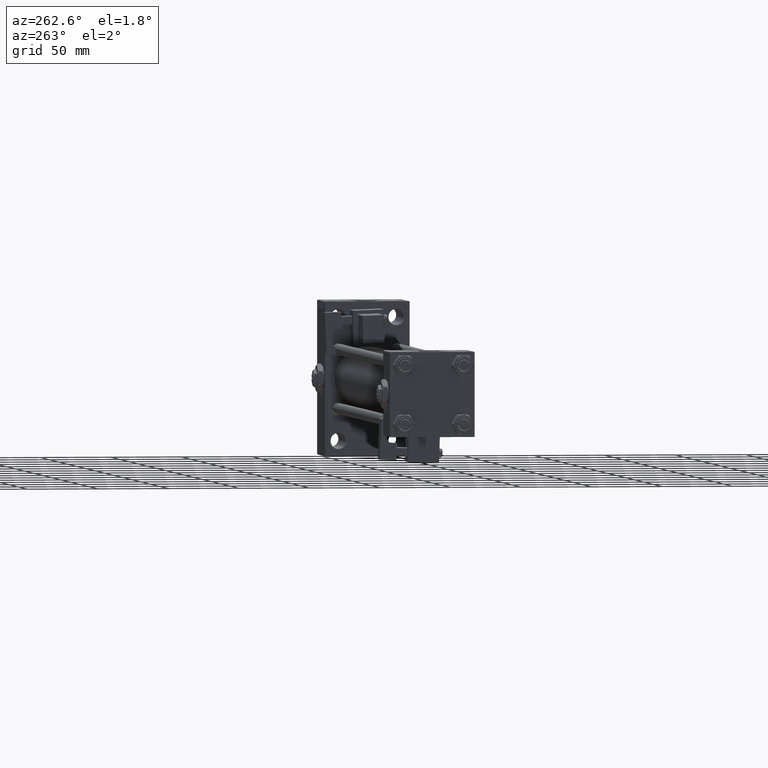
[diagram: clean part render]
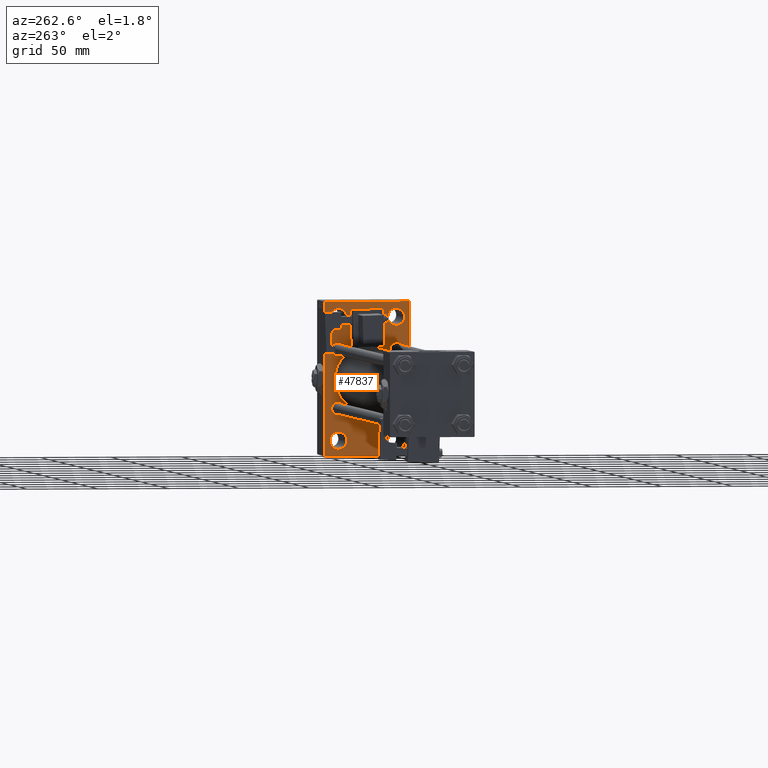
[diagram: same view with one face highlighted and labeled with its STEP entity id]
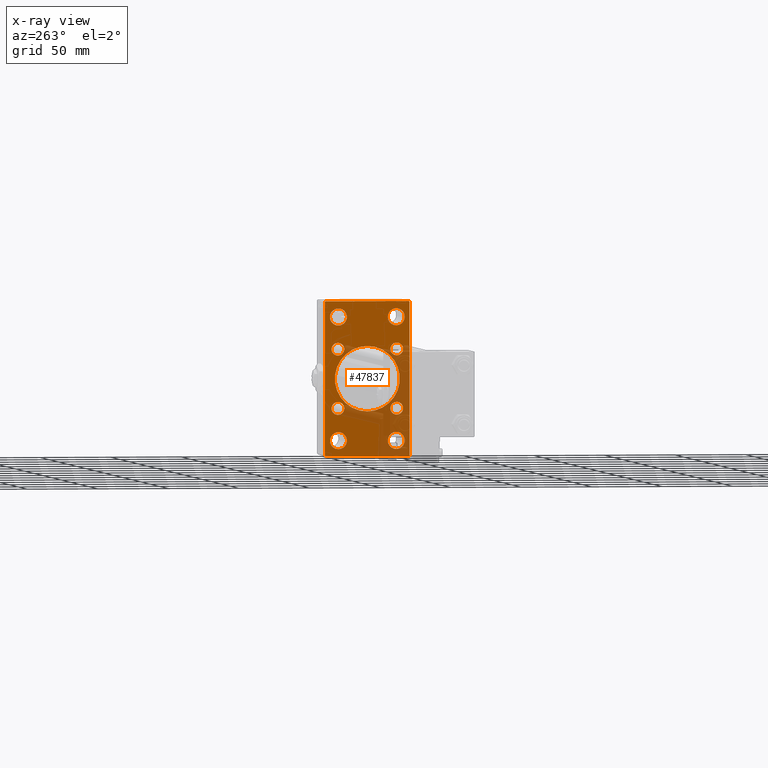
[diagram: x-ray of the same camera — body ghosted, the highlighted face saturated]
A machine part, auxiliary view. The second image highlights one B-rep face of the part: STEP entity #47837.
The next image is the same camera in x-ray: the body ghosted, the highlighted face saturated — about 29% of this face is hidden behind the body in this view.
In plain terms, the highlighted planar face has unit normal (-1, 0, 0).
Its self-contained STEP definition (entity closure, byte-faithful):
#22 = CIRCLE ( 'NONE', #49121, 6.000000000000005329 ) ;
#96 = EDGE_CURVE ( 'NONE', #48010, #7585, #3556, .T. ) ;
#181 = CARTESIAN_POINT ( 'NONE',  ( 355.0000000000000000, -30.00000000000000000, 54.50000000000000000 ) ) ;
#393 = EDGE_CURVE ( 'NONE', #671, #53659, #24070, .T. ) ;
#436 = AXIS2_PLACEMENT_3D ( 'NONE', #25426, #36981, #53752 ) ;
#671 = VERTEX_POINT ( 'NONE', #53415 ) ;
#866 = ORIENTED_EDGE ( 'NONE', *, *, #27394, .T. ) ;
#1594 = VERTEX_POINT ( 'NONE', #19353 ) ;
#1991 = CARTESIAN_POINT ( 'NONE',  ( 355.0000000000000000, 29.99999999999999645, -54.49999999999999289 ) ) ;
#1996 = VECTOR ( 'NONE', #49346, 1000.000000000000000 ) ;
#2267 = DIRECTION ( 'NONE',  ( 0.000000000000000000, -1.000000000000000000, -1.156482317317871478E-16 ) ) ;
#2465 = EDGE_LOOP ( 'NONE', ( #15439, #18576 ) ) ;
#2892 = EDGE_LOOP ( 'NONE', ( #15386, #47474 ) ) ;
#2983 = DIRECTION ( 'NONE',  ( 1.000000000000000000, -0.000000000000000000, 0.000000000000000000 ) ) ;
#2990 = EDGE_LOOP ( 'NONE', ( #16785, #28506, #37681, #46509, #33326, #20071, #25489, #20162 ) ) ;
#3556 = LINE ( 'NONE', #49701, #32840 ) ;
#3827 = VERTEX_POINT ( 'NONE', #7525 ) ;
#3934 = CIRCLE ( 'NONE', #24051, 4.500000000000007105 ) ;
#3983 = CARTESIAN_POINT ( 'NONE',  ( 355.0000000000000000, -2.602085213965210642E-15, 0.000000000000000000 ) ) ;
#4042 = ORIENTED_EDGE ( 'NONE', *, *, #38823, .T. ) ;
#4287 = CARTESIAN_POINT ( 'NONE',  ( 355.0000000000000000, -20.84999999999999076, 16.34999999999999787 ) ) ;
#4478 = AXIS2_PLACEMENT_3D ( 'NONE', #49868, #8385, #45190 ) ;
#4639 = DIRECTION ( 'NONE',  ( 1.000000000000000000, -0.000000000000000000, 0.000000000000000000 ) ) ;
#4874 = DIRECTION ( 'NONE',  ( 0.000000000000000000, 0.000000000000000000, 1.000000000000000000 ) ) ;
#4908 = DIRECTION ( 'NONE',  ( 0.000000000000000000, 0.000000000000000000, 1.000000000000000000 ) ) ;
#6006 = DIRECTION ( 'NONE',  ( 0.000000000000000000, 0.000000000000000000, 1.000000000000000000 ) ) ;
#6188 = EDGE_LOOP ( 'NONE', ( #34117, #4042 ) ) ;
#6215 = CIRCLE ( 'NONE', #30776, 23.00000000000000000 ) ;
#6727 = ORIENTED_EDGE ( 'NONE', *, *, #9794, .T. ) ;
#7119 = VERTEX_POINT ( 'NONE', #26430 ) ;
#7459 = EDGE_CURVE ( 'NONE', #50944, #16041, #35122, .T. ) ;
#7525 = CARTESIAN_POINT ( 'NONE',  ( 355.0000000000000000, -20.50000000000000000, -49.50000000000000000 ) ) ;
#7585 = VERTEX_POINT ( 'NONE', #19895 ) ;
#7825 = EDGE_CURVE ( 'NONE', #13168, #1594, #10668, .T. ) ;
#8029 = CARTESIAN_POINT ( 'NONE',  ( 355.0000000000000000, -2.602085213965210642E-15, 23.00000000000000000 ) ) ;
#8129 = LINE ( 'NONE', #181, #28237 ) ;
#8385 = DIRECTION ( 'NONE',  ( 1.000000000000000000, -0.000000000000000000, 0.000000000000000000 ) ) ;
#8482 = DIRECTION ( 'NONE',  ( 1.000000000000000000, -0.000000000000000000, 0.000000000000000000 ) ) ;
#8489 = DIRECTION ( 'NONE',  ( 0.000000000000000000, 0.7071067811865474617, -0.7071067811865474617 ) ) ;
#9625 = CARTESIAN_POINT ( 'NONE',  ( 355.0000000000000000, -20.84999999999999076, -25.35000000000001208 ) ) ;
#9794 = EDGE_CURVE ( 'NONE', #21431, #47736, #40409, .T. ) ;
#9901 = CIRCLE ( 'NONE', #40588, 6.000000000000005329 ) ;
#9956 = FACE_BOUND ( 'NONE', #2465, .T. ) ;
#10184 = CARTESIAN_POINT ( 'NONE',  ( 355.0000000000000000, 20.50000000000000000, 43.50000000000000000 ) ) ;
#10213 = CIRCLE ( 'NONE', #44411, 4.500000000000007105 ) ;
#10668 = CIRCLE ( 'NONE', #26448, 4.500000000000007105 ) ;
#10688 = CIRCLE ( 'NONE', #19452, 6.000000000000005329 ) ;
#10719 = DIRECTION ( 'NONE',  ( 0.000000000000000000, 0.000000000000000000, 1.000000000000000000 ) ) ;
#10850 = CARTESIAN_POINT ( 'NONE',  ( 355.0000000000000000, 29.99999999999999645, 54.49999999999999289 ) ) ;
#11199 = CARTESIAN_POINT ( 'NONE',  ( 355.0000000000000000, -30.00000000000000000, 54.00000000000000000 ) ) ;
#11301 = PLANE ( 'NONE',  #33498 ) ;
#11567 = FACE_BOUND ( 'NONE', #13749, .T. ) ;
#11591 = AXIS2_PLACEMENT_3D ( 'NONE', #23834, #40599, #46364 ) ;
#11730 = DIRECTION ( 'NONE',  ( 1.000000000000000000, -0.000000000000000000, 0.000000000000000000 ) ) ;
#11882 = EDGE_CURVE ( 'NONE', #24011, #46232, #43448, .T. ) ;
#12672 = EDGE_CURVE ( 'NONE', #50944, #48615, #8129, .T. ) ;
#12889 = CARTESIAN_POINT ( 'NONE',  ( 355.0000000000000000, -20.50000000000000000, -43.50000000000000000 ) ) ;
#13090 = ORIENTED_EDGE ( 'NONE', *, *, #7825, .T. ) ;
#13168 = VERTEX_POINT ( 'NONE', #4287 ) ;
#13425 = CARTESIAN_POINT ( 'NONE',  ( 355.0000000000000000, -30.00000000000000000, -53.99999999999998579 ) ) ;
#13434 = LINE ( 'NONE', #13960, #48613 ) ;
#13618 = CARTESIAN_POINT ( 'NONE',  ( 355.0000000000000000, 20.50000000000000000, 37.49999999999999289 ) ) ;
#13749 = EDGE_LOOP ( 'NONE', ( #35890, #48036 ) ) ;
#13960 = CARTESIAN_POINT ( 'NONE',  ( 355.0000000000000000, 41.99999999999998579, -41.99999999999998579 ) ) ;
#14226 = VERTEX_POINT ( 'NONE', #13618 ) ;
#14251 = EDGE_LOOP ( 'NONE', ( #22724, #20317 ) ) ;
#14328 = FACE_BOUND ( 'NONE', #17394, .T. ) ;
#14380 = AXIS2_PLACEMENT_3D ( 'NONE', #22337, #46808, #42700 ) ;
#14412 = AXIS2_PLACEMENT_3D ( 'NONE', #47544, #53302, #48355 ) ;
#14441 = DIRECTION ( 'NONE',  ( 1.000000000000000000, -0.000000000000000000, 0.000000000000000000 ) ) ;
#14511 = DIRECTION ( 'NONE',  ( 1.000000000000000000, -0.000000000000000000, 0.000000000000000000 ) ) ;
#14538 = CARTESIAN_POINT ( 'NONE',  ( 355.0000000000000000, 29.49999999999999645, 54.49999999999999289 ) ) ;
#14628 = DIRECTION ( 'NONE',  ( 1.000000000000000000, -0.000000000000000000, 0.000000000000000000 ) ) ;
#14825 = DIRECTION ( 'NONE',  ( 1.000000000000000000, -0.000000000000000000, 0.000000000000000000 ) ) ;
#15337 = CARTESIAN_POINT ( 'NONE',  ( 355.0000000000000000, -42.00000000000009948, 41.99999999999980815 ) ) ;
#15386 = ORIENTED_EDGE ( 'NONE', *, *, #17020, .T. ) ;
#15439 = ORIENTED_EDGE ( 'NONE', *, *, #42689, .T. ) ;
#15481 = VERTEX_POINT ( 'NONE', #42749 ) ;
#15961 = FACE_BOUND ( 'NONE', #14251, .T. ) ;
#16041 = VERTEX_POINT ( 'NONE', #31023 ) ;
#16377 = EDGE_CURVE ( 'NONE', #22793, #24011, #13434, .T. ) ;
#16468 = AXIS2_PLACEMENT_3D ( 'NONE', #31177, #14441, #19368 ) ;
#16542 = AXIS2_PLACEMENT_3D ( 'NONE', #42262, #4639, #4908 ) ;
#16581 = EDGE_CURVE ( 'NONE', #31871, #31714, #24922, .T. ) ;
#16599 = DIRECTION ( 'NONE',  ( 1.000000000000000000, 0.000000000000000000, 0.000000000000000000 ) ) ;
#16785 = ORIENTED_EDGE ( 'NONE', *, *, #11882, .T. ) ;
#16915 = DIRECTION ( 'NONE',  ( 0.000000000000000000, 0.000000000000000000, -1.000000000000000000 ) ) ;
#17020 = EDGE_CURVE ( 'NONE', #26073, #48813, #32827, .T. ) ;
#17394 = EDGE_LOOP ( 'NONE', ( #39542, #13090 ) ) ;
#17499 = EDGE_CURVE ( 'NONE', #48542, #33675, #3934, .T. ) ;
#17808 = LINE ( 'NONE', #10850, #31127 ) ;
#17908 = AXIS2_PLACEMENT_3D ( 'NONE', #3983, #16599, #33609 ) ;
#18340 = DIRECTION ( 'NONE',  ( -0.000000000000000000, -0.7071067811865474617, -0.7071067811865474617 ) ) ;
#18576 = ORIENTED_EDGE ( 'NONE', *, *, #52341, .T. ) ;
#19353 = CARTESIAN_POINT ( 'NONE',  ( 355.0000000000000000, -20.84999999999999076, 25.35000000000001208 ) ) ;
#19368 = DIRECTION ( 'NONE',  ( 0.000000000000000000, 0.000000000000000000, 1.000000000000000000 ) ) ;
#19452 = AXIS2_PLACEMENT_3D ( 'NONE', #12889, #29620, #38688 ) ;
#19895 = CARTESIAN_POINT ( 'NONE',  ( 355.0000000000000000, 29.99999999999999645, 53.99999999999999289 ) ) ;
#19943 = CIRCLE ( 'NONE', #16468, 6.000000000000005329 ) ;
#19986 = DIRECTION ( 'NONE',  ( 0.000000000000000000, 0.000000000000000000, 1.000000000000000000 ) ) ;
#20071 = ORIENTED_EDGE ( 'NONE', *, *, #96, .T. ) ;
#20162 = ORIENTED_EDGE ( 'NONE', *, *, #16377, .T. ) ;
#20317 = ORIENTED_EDGE ( 'NONE', *, *, #47019, .T. ) ;
#20752 = DIRECTION ( 'NONE',  ( 0.000000000000000000, 0.000000000000000000, 1.000000000000000000 ) ) ;
#20988 = CARTESIAN_POINT ( 'NONE',  ( 355.0000000000000000, -20.84999999999999076, 20.85000000000000497 ) ) ;
#20997 = ORIENTED_EDGE ( 'NONE', *, *, #40533, .T. ) ;
#21028 = EDGE_CURVE ( 'NONE', #14226, #7119, #37406, .T. ) ;
#21352 = EDGE_CURVE ( 'NONE', #7585, #22793, #17808, .T. ) ;
#21431 = VERTEX_POINT ( 'NONE', #41869 ) ;
#21907 = CARTESIAN_POINT ( 'NONE',  ( 355.0000000000000000, 20.50000000000000000, 43.50000000000000000 ) ) ;
#22324 = DIRECTION ( 'NONE',  ( 0.000000000000000000, 0.000000000000000000, 1.000000000000000000 ) ) ;
#22337 = CARTESIAN_POINT ( 'NONE',  ( 355.0000000000000000, 20.50000000000000000, -43.50000000000000000 ) ) ;
#22724 = ORIENTED_EDGE ( 'NONE', *, *, #393, .T. ) ;
#22793 = VERTEX_POINT ( 'NONE', #29445 ) ;
#23781 = VECTOR ( 'NONE', #44179, 1000.000000000000114 ) ;
#23834 = CARTESIAN_POINT ( 'NONE',  ( 355.0000000000000000, -20.84999999999999076, -20.85000000000000497 ) ) ;
#23914 = CARTESIAN_POINT ( 'NONE',  ( 355.0000000000000000, 0.000000000000000000, 0.000000000000000000 ) ) ;
#23951 = CARTESIAN_POINT ( 'NONE',  ( 355.0000000000000000, 2.146024240737012665E-16, -23.00000000000000000 ) ) ;
#24011 = VERTEX_POINT ( 'NONE', #27747 ) ;
#24039 = CARTESIAN_POINT ( 'NONE',  ( 355.0000000000000000, -29.50000000000000355, -54.50000000000000000 ) ) ;
#24051 = AXIS2_PLACEMENT_3D ( 'NONE', #38109, #39172, #4874 ) ;
#24070 = CIRCLE ( 'NONE', #436, 4.500000000000007105 ) ;
#24144 = CIRCLE ( 'NONE', #27657, 6.000000000000005329 ) ;
#24894 = CARTESIAN_POINT ( 'NONE',  ( 355.0000000000000000, 20.84999999999999787, 20.85000000000000142 ) ) ;
#24922 = CIRCLE ( 'NONE', #17908, 23.00000000000000000 ) ;
#25031 = EDGE_LOOP ( 'NONE', ( #866, #6727 ) ) ;
#25426 = CARTESIAN_POINT ( 'NONE',  ( 355.0000000000000000, -20.84999999999999076, -20.85000000000000497 ) ) ;
#25437 = DIRECTION ( 'NONE',  ( 0.000000000000000000, 0.000000000000000000, 1.000000000000000000 ) ) ;
#25489 = ORIENTED_EDGE ( 'NONE', *, *, #21352, .T. ) ;
#25868 = EDGE_CURVE ( 'NONE', #48813, #26073, #35353, .T. ) ;
#26073 = VERTEX_POINT ( 'NONE', #48751 ) ;
#26430 = CARTESIAN_POINT ( 'NONE',  ( 355.0000000000000000, 20.50000000000000000, 49.50000000000000000 ) ) ;
#26448 = AXIS2_PLACEMENT_3D ( 'NONE', #20988, #14628, #22324 ) ;
#26677 = FACE_BOUND ( 'NONE', #50047, .T. ) ;
#27394 = EDGE_CURVE ( 'NONE', #47736, #21431, #45087, .T. ) ;
#27657 = AXIS2_PLACEMENT_3D ( 'NONE', #41907, #50700, #20752 ) ;
#27747 = CARTESIAN_POINT ( 'NONE',  ( 355.0000000000000000, 29.49999999999999645, -54.49999999999999289 ) ) ;
#28026 = DIRECTION ( 'NONE',  ( 0.000000000000000000, -0.7071067811865352493, 0.7071067811865597852 ) ) ;
#28237 = VECTOR ( 'NONE', #16915, 1000.000000000000000 ) ;
#28298 = DIRECTION ( 'NONE',  ( -1.000000000000000000, 0.000000000000000000, -0.000000000000000000 ) ) ;
#28506 = ORIENTED_EDGE ( 'NONE', *, *, #40195, .T. ) ;
#29077 = EDGE_LOOP ( 'NONE', ( #20997, #42053 ) ) ;
#29445 = CARTESIAN_POINT ( 'NONE',  ( 355.0000000000000000, 29.99999999999999645, -53.99999999999999289 ) ) ;
#29620 = DIRECTION ( 'NONE',  ( 1.000000000000000000, -0.000000000000000000, 0.000000000000000000 ) ) ;
#29669 = CIRCLE ( 'NONE', #16542, 4.500000000000007105 ) ;
#30308 = EDGE_CURVE ( 'NONE', #15481, #36339, #24144, .T. ) ;
#30776 = AXIS2_PLACEMENT_3D ( 'NONE', #36255, #35714, #39573 ) ;
#30828 = VECTOR ( 'NONE', #2267, 1000.000000000000000 ) ;
#31023 = CARTESIAN_POINT ( 'NONE',  ( 355.0000000000000000, -29.50000000000000355, 54.50000000000000000 ) ) ;
#31127 = VECTOR ( 'NONE', #31682, 1000.000000000000000 ) ;
#31177 = CARTESIAN_POINT ( 'NONE',  ( 355.0000000000000000, -20.50000000000000000, 43.50000000000000000 ) ) ;
#31682 = DIRECTION ( 'NONE',  ( 0.000000000000000000, 0.000000000000000000, -1.000000000000000000 ) ) ;
#31714 = VERTEX_POINT ( 'NONE', #23951 ) ;
#31775 = CARTESIAN_POINT ( 'NONE',  ( 355.0000000000000000, -20.84999999999999076, 20.85000000000000497 ) ) ;
#31871 = VERTEX_POINT ( 'NONE', #8029 ) ;
#32827 = CIRCLE ( 'NONE', #14412, 4.500000000000007105 ) ;
#32840 = VECTOR ( 'NONE', #8489, 1000.000000000000114 ) ;
#33107 = EDGE_CURVE ( 'NONE', #1594, #13168, #10213, .T. ) ;
#33326 = ORIENTED_EDGE ( 'NONE', *, *, #54208, .F. ) ;
#33498 = AXIS2_PLACEMENT_3D ( 'NONE', #23914, #28298, #53603 ) ;
#33585 = AXIS2_PLACEMENT_3D ( 'NONE', #24894, #11730, #25437 ) ;
#33609 = DIRECTION ( 'NONE',  ( 0.000000000000000000, 0.000000000000000000, -1.000000000000000000 ) ) ;
#33675 = VERTEX_POINT ( 'NONE', #50682 ) ;
#34117 = ORIENTED_EDGE ( 'NONE', *, *, #30308, .T. ) ;
#35122 = LINE ( 'NONE', #15337, #23781 ) ;
#35353 = CIRCLE ( 'NONE', #33585, 4.500000000000007105 ) ;
#35714 = DIRECTION ( 'NONE',  ( 1.000000000000000000, 0.000000000000000000, 0.000000000000000000 ) ) ;
#35890 = ORIENTED_EDGE ( 'NONE', *, *, #16581, .T. ) ;
#36008 = CARTESIAN_POINT ( 'NONE',  ( 355.0000000000000000, -42.00000000000051159, -41.99999999999905498 ) ) ;
#36255 = CARTESIAN_POINT ( 'NONE',  ( 355.0000000000000000, -2.602085213965210642E-15, 0.000000000000000000 ) ) ;
#36339 = VERTEX_POINT ( 'NONE', #49428 ) ;
#36981 = DIRECTION ( 'NONE',  ( 1.000000000000000000, -0.000000000000000000, 0.000000000000000000 ) ) ;
#37406 = CIRCLE ( 'NONE', #44402, 6.000000000000005329 ) ;
#37608 = CARTESIAN_POINT ( 'NONE',  ( 355.0000000000000000, 20.84999999999999787, -25.35000000000000853 ) ) ;
#37681 = ORIENTED_EDGE ( 'NONE', *, *, #12672, .F. ) ;
#38109 = CARTESIAN_POINT ( 'NONE',  ( 355.0000000000000000, 20.84999999999999787, -20.85000000000000142 ) ) ;
#38688 = DIRECTION ( 'NONE',  ( 0.000000000000000000, 0.000000000000000000, 1.000000000000000000 ) ) ;
#38823 = EDGE_CURVE ( 'NONE', #36339, #15481, #19943, .T. ) ;
#39172 = DIRECTION ( 'NONE',  ( 1.000000000000000000, -0.000000000000000000, 0.000000000000000000 ) ) ;
#39542 = ORIENTED_EDGE ( 'NONE', *, *, #33107, .T. ) ;
#39573 = DIRECTION ( 'NONE',  ( 0.000000000000000000, 0.000000000000000000, -1.000000000000000000 ) ) ;
#40075 = VERTEX_POINT ( 'NONE', #51705 ) ;
#40195 = EDGE_CURVE ( 'NONE', #46232, #48615, #44530, .T. ) ;
#40409 = CIRCLE ( 'NONE', #4478, 6.000000000000005329 ) ;
#40533 = EDGE_CURVE ( 'NONE', #33675, #48542, #29669, .T. ) ;
#40588 = AXIS2_PLACEMENT_3D ( 'NONE', #21907, #8482, #41985 ) ;
#40599 = DIRECTION ( 'NONE',  ( 1.000000000000000000, -0.000000000000000000, 0.000000000000000000 ) ) ;
#41869 = CARTESIAN_POINT ( 'NONE',  ( 355.0000000000000000, 20.50000000000000000, -49.50000000000000000 ) ) ;
#41907 = CARTESIAN_POINT ( 'NONE',  ( 355.0000000000000000, -20.50000000000000000, 43.50000000000000000 ) ) ;
#41985 = DIRECTION ( 'NONE',  ( 0.000000000000000000, 0.000000000000000000, 1.000000000000000000 ) ) ;
#42053 = ORIENTED_EDGE ( 'NONE', *, *, #17499, .T. ) ;
#42262 = CARTESIAN_POINT ( 'NONE',  ( 355.0000000000000000, 20.84999999999999787, -20.85000000000000142 ) ) ;
#42318 = CIRCLE ( 'NONE', #11591, 4.500000000000007105 ) ;
#42689 = EDGE_CURVE ( 'NONE', #40075, #3827, #22, .T. ) ;
#42700 = DIRECTION ( 'NONE',  ( 0.000000000000000000, 0.000000000000000000, 1.000000000000000000 ) ) ;
#42749 = CARTESIAN_POINT ( 'NONE',  ( 355.0000000000000000, -20.50000000000000000, 49.50000000000000000 ) ) ;
#42856 = VECTOR ( 'NONE', #28026, 1000.000000000000000 ) ;
#43364 = CARTESIAN_POINT ( 'NONE',  ( 355.0000000000000000, -20.50000000000000000, -43.50000000000000000 ) ) ;
#43448 = LINE ( 'NONE', #1991, #30828 ) ;
#44179 = DIRECTION ( 'NONE',  ( -0.000000000000000000, 0.7071067811865451302, 0.7071067811865500152 ) ) ;
#44398 = CARTESIAN_POINT ( 'NONE',  ( 355.0000000000000000, 29.99999999999999645, 54.49999999999999289 ) ) ;
#44402 = AXIS2_PLACEMENT_3D ( 'NONE', #10184, #14825, #10719 ) ;
#44411 = AXIS2_PLACEMENT_3D ( 'NONE', #31775, #2983, #19986 ) ;
#44530 = LINE ( 'NONE', #36008, #42856 ) ;
#44793 = FACE_BOUND ( 'NONE', #29077, .T. ) ;
#45087 = CIRCLE ( 'NONE', #14380, 6.000000000000005329 ) ;
#45190 = DIRECTION ( 'NONE',  ( 0.000000000000000000, 0.000000000000000000, 1.000000000000000000 ) ) ;
#46053 = CARTESIAN_POINT ( 'NONE',  ( 355.0000000000000000, 20.84999999999999787, 16.34999999999999432 ) ) ;
#46232 = VERTEX_POINT ( 'NONE', #24039 ) ;
#46364 = DIRECTION ( 'NONE',  ( 0.000000000000000000, 0.000000000000000000, 1.000000000000000000 ) ) ;
#46509 = ORIENTED_EDGE ( 'NONE', *, *, #7459, .T. ) ;
#46559 = ORIENTED_EDGE ( 'NONE', *, *, #53986, .T. ) ;
#46808 = DIRECTION ( 'NONE',  ( 1.000000000000000000, -0.000000000000000000, 0.000000000000000000 ) ) ;
#47019 = EDGE_CURVE ( 'NONE', #53659, #671, #42318, .T. ) ;
#47474 = ORIENTED_EDGE ( 'NONE', *, *, #25868, .T. ) ;
#47544 = CARTESIAN_POINT ( 'NONE',  ( 355.0000000000000000, 20.84999999999999787, 20.85000000000000142 ) ) ;
#47574 = FACE_BOUND ( 'NONE', #6188, .T. ) ;
#47736 = VERTEX_POINT ( 'NONE', #49813 ) ;
#47837 = ADVANCED_FACE ( 'NONE', ( #47574, #9956, #51973, #26677, #14328, #49203, #44793, #15961, #11567, #48656 ), #11301, .T. ) ;
#48010 = VERTEX_POINT ( 'NONE', #14538 ) ;
#48036 = ORIENTED_EDGE ( 'NONE', *, *, #50634, .T. ) ;
#48355 = DIRECTION ( 'NONE',  ( 0.000000000000000000, 0.000000000000000000, 1.000000000000000000 ) ) ;
#48542 = VERTEX_POINT ( 'NONE', #37608 ) ;
#48613 = VECTOR ( 'NONE', #18340, 1000.000000000000114 ) ;
#48615 = VERTEX_POINT ( 'NONE', #13425 ) ;
#48656 = FACE_OUTER_BOUND ( 'NONE', #2990, .T. ) ;
#48751 = CARTESIAN_POINT ( 'NONE',  ( 355.0000000000000000, 20.84999999999999787, 25.35000000000000853 ) ) ;
#48813 = VERTEX_POINT ( 'NONE', #46053 ) ;
#49121 = AXIS2_PLACEMENT_3D ( 'NONE', #43364, #14511, #6006 ) ;
#49203 = FACE_BOUND ( 'NONE', #2892, .T. ) ;
#49346 = DIRECTION ( 'NONE',  ( 0.000000000000000000, -1.000000000000000000, 1.156482317317871478E-16 ) ) ;
#49428 = CARTESIAN_POINT ( 'NONE',  ( 355.0000000000000000, -20.50000000000000000, 37.49999999999999289 ) ) ;
#49701 = CARTESIAN_POINT ( 'NONE',  ( 355.0000000000000000, 41.99999999999998579, 41.99999999999998579 ) ) ;
#49813 = CARTESIAN_POINT ( 'NONE',  ( 355.0000000000000000, 20.50000000000000000, -37.49999999999999289 ) ) ;
#49868 = CARTESIAN_POINT ( 'NONE',  ( 355.0000000000000000, 20.50000000000000000, -43.50000000000000000 ) ) ;
#50047 = EDGE_LOOP ( 'NONE', ( #46559, #52990 ) ) ;
#50634 = EDGE_CURVE ( 'NONE', #31714, #31871, #6215, .T. ) ;
#50682 = CARTESIAN_POINT ( 'NONE',  ( 355.0000000000000000, 20.84999999999999787, -16.34999999999999432 ) ) ;
#50700 = DIRECTION ( 'NONE',  ( 1.000000000000000000, -0.000000000000000000, 0.000000000000000000 ) ) ;
#50944 = VERTEX_POINT ( 'NONE', #11199 ) ;
#51705 = CARTESIAN_POINT ( 'NONE',  ( 355.0000000000000000, -20.50000000000000000, -37.49999999999999289 ) ) ;
#51973 = FACE_BOUND ( 'NONE', #25031, .T. ) ;
#52341 = EDGE_CURVE ( 'NONE', #3827, #40075, #10688, .T. ) ;
#52990 = ORIENTED_EDGE ( 'NONE', *, *, #21028, .T. ) ;
#53302 = DIRECTION ( 'NONE',  ( 1.000000000000000000, -0.000000000000000000, 0.000000000000000000 ) ) ;
#53415 = CARTESIAN_POINT ( 'NONE',  ( 355.0000000000000000, -20.84999999999999076, -16.34999999999999787 ) ) ;
#53603 = DIRECTION ( 'NONE',  ( -0.000000000000000000, 0.000000000000000000, 1.000000000000000000 ) ) ;
#53659 = VERTEX_POINT ( 'NONE', #9625 ) ;
#53745 = LINE ( 'NONE', #44398, #1996 ) ;
#53752 = DIRECTION ( 'NONE',  ( 0.000000000000000000, 0.000000000000000000, 1.000000000000000000 ) ) ;
#53986 = EDGE_CURVE ( 'NONE', #7119, #14226, #9901, .T. ) ;
#54208 = EDGE_CURVE ( 'NONE', #48010, #16041, #53745, .T. ) ;